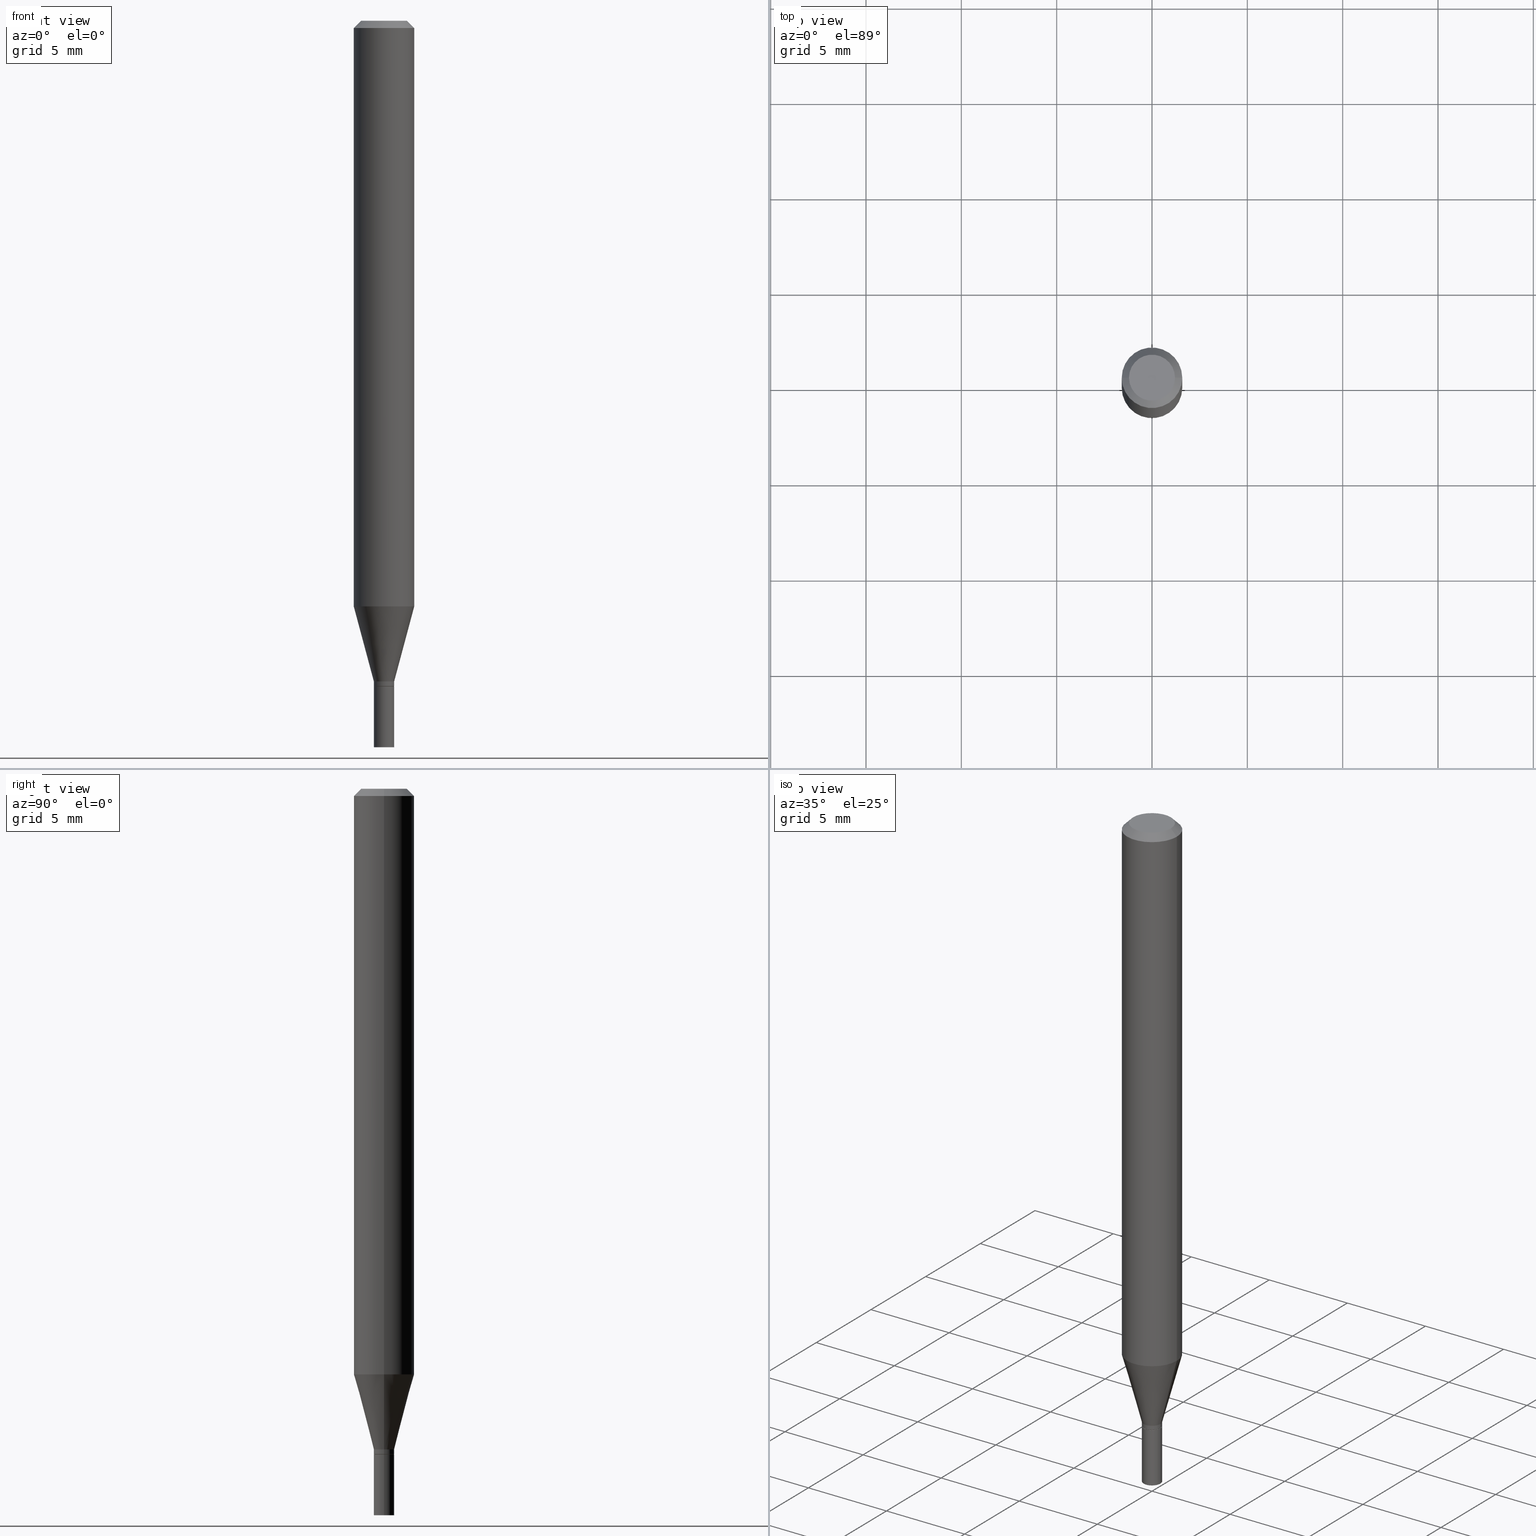
[diagram: canonical four-view strip — front | top / right | iso, engineering-drawing reading convention]
A machine part, canonical four-view strip (front | top / right | iso — engineering-drawing reading convention). The complete STEP part file that produces these views, byte-faithful:
ISO-10303-21;
HEADER;
FILE_DESCRIPTION (( 'STEP AP203' ),
    '1' );
FILE_NAME ('00551.STEP',
    '2024-03-19T21:39:30',
    ( '' ),
    ( '' ),
    'SwSTEP 2.0',
    'SolidWorks 2023',
    '' );
FILE_SCHEMA (( 'CONFIG_CONTROL_DESIGN' ));
ENDSEC;

DATA;
#1 = ORIENTED_EDGE ( 'NONE', *, *, #458, .T. ) ;
#2 = CARTESIAN_POINT ( 'NONE',  ( -0.02050000000000000086, -4.648984871565551237E-15, -1.374000000000000110 ) ) ;
#3 = ORIENTED_EDGE ( 'NONE', *, *, #261, .F. ) ;
#4 = APPROVAL_STATUS ( 'not_yet_approved' ) ;
#5 = VERTEX_POINT ( 'NONE', #285 ) ;
#6 = APPLICATION_PROTOCOL_DEFINITION ( 'international standard', 'config_control_design', 1994, #114 ) ;
#7 = DIRECTION ( 'NONE',  ( -2.445468806185136597E-29, 3.491481338843145583E-15, 1.000000000000000000 ) ) ;
#8 = CARTESIAN_POINT ( 'NONE',  ( 3.335619451636526233E-29, -4.762380546182051062E-15, -1.363999999999999879 ) ) ;
#9 = FACE_OUTER_BOUND ( 'NONE', #168, .T. ) ;
#10 = PERSON_AND_ORGANIZATION ( #194, #313 ) ;
#11 = DIRECTION ( 'NONE',  ( -2.445468806185136597E-29, 3.491481338843145583E-15, 1.000000000000000000 ) ) ;
#12 = AXIS2_PLACEMENT_3D ( 'NONE', #416, #294, #184 ) ;
#13 = APPROVAL ( #450, 'UNSPECIFIED' ) ;
#14 = CIRCLE ( 'NONE', #213, 0.02050000000000000086 ) ;
#15 = DIRECTION ( 'NONE',  ( 1.000000000000000000, -6.982962677686267499E-15, 4.884662768193073002E-29 ) ) ;
#16 = DATE_AND_TIME ( #231, #433 ) ;
#17 = DIRECTION ( 'NONE',  ( 1.000000000000000000, -6.982962677686265922E-15, 4.876176775795935232E-29 ) ) ;
#18 = APPLICATION_CONTEXT ( 'configuration controlled 3d designs of mechanical parts and assemblies' ) ;
#19 = DIRECTION ( 'NONE',  ( 1.000000000000000000, -6.982962677686266711E-15, 4.876176775795936353E-29 ) ) ;
#20 = VERTEX_POINT ( 'NONE', #353 ) ;
#21 = EDGE_CURVE ( 'NONE', #253, #149, #65, .T. ) ;
#22 = MANIFOLD_SOLID_BREP ( 'Body-Move/Copy2[2]', #196 ) ;
#23 = DIRECTION ( 'NONE',  ( -2.445468806185136877E-29, 3.491481338843145188E-15, 1.000000000000000000 ) ) ;
#24 = CIRCLE ( 'NONE', #282, 0.02050000000000000086 ) ;
#25 = VERTEX_POINT ( 'NONE', #398 ) ;
#26 = CARTESIAN_POINT ( 'NONE',  ( 0.02100000000000000477, -5.383864224496130787E-15, -1.500000000000000222 ) ) ;
#27 = ORIENTED_EDGE ( 'NONE', *, *, #112, .T. ) ;
#28 = PRODUCT_RELATED_PRODUCT_CATEGORY ( 'detail', '', ( #315 ) ) ;
#29 = CARTESIAN_POINT ( 'NONE',  ( 0.02050000000000000086, -4.940446094463050737E-15, -1.374000000000000110 ) ) ;
#30 = ORIENTED_EDGE ( 'NONE', *, *, #172, .T. ) ;
#31 = AXIS2_PLACEMENT_3D ( 'NONE', #38, #47, #328 ) ;
#32 = AXIS2_PLACEMENT_3D ( 'NONE', #152, #397, #441 ) ;
#33 = EDGE_LOOP ( 'NONE', ( #463, #319 ) ) ;
#34 = EDGE_LOOP ( 'NONE', ( #70, #30, #390, #237 ) ) ;
#35 = CC_DESIGN_PERSON_AND_ORGANIZATION_ASSIGNMENT ( #200, #339, ( #376 ) ) ;
#36 = DIRECTION ( 'NONE',  ( 0.7071067811865656694, -2.468850131082446387E-15, 0.7071067811865294761 ) ) ;
#37 = EDGE_LOOP ( 'NONE', ( #271, #137, #3, #80 ) ) ;
#38 = CARTESIAN_POINT ( 'NONE',  ( 3.668203209277705088E-31, -5.237222008264718399E-17, -0.01499999999999999944 ) ) ;
#39 = AXIS2_PLACEMENT_3D ( 'NONE', #381, #312, #171 ) ;
#40 = VECTOR ( 'NONE', #265, 39.37007874015747433 ) ;
#41 = ADVANCED_FACE ( 'NONE', ( #430 ), #107, .T. ) ;
#42 = VERTEX_POINT ( 'NONE', #359 ) ;
#43 = LINE ( 'NONE', #320, #135 ) ;
#44 = ADVANCED_FACE ( 'NONE', ( #465 ), #156, .T. ) ;
#45 = ORIENTED_EDGE ( 'NONE', *, *, #92, .T. ) ;
#46 = CYLINDRICAL_SURFACE ( 'NONE', #434, 0.02099999999999992498 ) ;
#47 = DIRECTION ( 'NONE',  ( 2.445468806185136597E-29, -3.491481338843145583E-15, -1.000000000000000000 ) ) ;
#48 = DIRECTION ( 'NONE',  ( -2.445468806185136597E-29, 3.491481338843145583E-15, 1.000000000000000000 ) ) ;
#49 = EDGE_CURVE ( 'NONE', #306, #105, #214, .T. ) ;
#50 = LENGTH_MEASURE_WITH_UNIT ( LENGTH_MEASURE( 0.02539999999999999897 ), #436 );
#51 = DIRECTION ( 'NONE',  ( -2.445468806185136597E-29, 3.491481338843145583E-15, 1.000000000000000000 ) ) ;
#52 = CC_DESIGN_DATE_AND_TIME_ASSIGNMENT ( #272, #411, ( #321 ) ) ;
#53 = FACE_OUTER_BOUND ( 'NONE', #176, .T. ) ;
#54 = CONICAL_SURFACE ( 'NONE', #459, 0.02050000000000000086, 0.7853981633974739252 ) ;
#55 = PERSON_AND_ORGANIZATION ( #194, #313 ) ;
#56 = DIRECTION ( 'NONE',  ( 1.000000000000000000, -6.982962677686284854E-15, 0.000000000000000000 ) ) ;
#57 = AXIS2_PLACEMENT_3D ( 'NONE', #117, #157, #226 ) ;
#58 = CALENDAR_DATE ( 2024, 19, 3 ) ;
#59 = DIRECTION ( 'NONE',  ( -0.7071067811865444641, 2.468850131082224717E-15, -0.7071067811865505703 ) ) ;
#60 = ADVANCED_FACE ( 'NONE', ( #332 ), #220, .T. ) ;
#61 = DATE_TIME_ROLE ( 'classification_date' ) ;
#62 = CONICAL_SURFACE ( 'NONE', #346, 0.02050000000000000086, 0.7853981633974739252 ) ;
#63 = FACE_OUTER_BOUND ( 'NONE', #110, .T. ) ;
#64 = CARTESIAN_POINT ( 'NONE',  ( 3.335619451636526233E-29, -4.762380546182051062E-15, -1.363999999999999879 ) ) ;
#65 = CIRCLE ( 'NONE', #150, 0.04749999999999999362 ) ;
#66 = CARTESIAN_POINT ( 'NONE',  ( 3.360074139698378339E-29, -4.797295359570482711E-15, -1.374000000000000110 ) ) ;
#67 = ORIENTED_EDGE ( 'NONE', *, *, #92, .F. ) ;
#68 = AXIS2_PLACEMENT_3D ( 'NONE', #276, #453, #387 ) ;
#69 = EDGE_CURVE ( 'NONE', #314, #306, #120, .T. ) ;
#70 = ORIENTED_EDGE ( 'NONE', *, *, #405, .F. ) ;
#71 = CARTESIAN_POINT ( 'NONE',  ( 3.335619451636526233E-29, -4.762380546182051062E-15, -1.363999999999999879 ) ) ;
#72 = DIRECTION ( 'NONE',  ( -2.445468806185136597E-29, 3.491481338843145583E-15, 1.000000000000000000 ) ) ;
#73 = CIRCLE ( 'NONE', #274, 0.06250000000000000000 ) ;
#74 = ORIENTED_EDGE ( 'NONE', *, *, #172, .F. ) ;
#75 = CARTESIAN_POINT ( 'NONE',  ( 0.02099999999999992151, -4.909022762413462095E-15, -1.363999999999999879 ) ) ;
#76 = ORIENTED_EDGE ( 'NONE', *, *, #373, .T. ) ;
#77 = ADVANCED_FACE ( 'NONE', ( #295 ), #82, .F. ) ;
#78 = CARTESIAN_POINT ( 'NONE',  ( 0.06250000000000000000, -4.811533449433679005E-16, -0.01499999999999999944 ) ) ;
#79 = ADVANCED_FACE ( 'NONE', ( #53 ), #327, .T. ) ;
#80 = ORIENTED_EDGE ( 'NONE', *, *, #193, .F. ) ;
#81 = CARTESIAN_POINT ( 'NONE',  ( 3.360074139698378339E-29, -4.797295359570482711E-15, -1.374000000000000110 ) ) ;
#82 = PLANE ( 'NONE',  #400 ) ;
#83 = VECTOR ( 'NONE', #59, 39.37007874015748143 ) ;
#84 = DIRECTION ( 'NONE',  ( -0.7071067811865656694, 7.493145998870420424E-15, 0.7071067811865294761 ) ) ;
#85 = AXIS2_PLACEMENT_3D ( 'NONE', #404, #259, #147 ) ;
#86 = LINE ( 'NONE', #369, #266 ) ;
#87 = EDGE_CURVE ( 'NONE', #356, #462, #116, .T. ) ;
#88 =( NAMED_UNIT ( * ) SI_UNIT ( $, .STERADIAN. ) SOLID_ANGLE_UNIT ( ) );
#89 = CIRCLE ( 'NONE', #426, 0.02100000000000000477 ) ;
#90 = FACE_OUTER_BOUND ( 'NONE', #34, .T. ) ;
#91 = CARTESIAN_POINT ( 'NONE',  ( 0.000000000000000000, 0.000000000000000000, 0.000000000000000000 ) ) ;
#92 = EDGE_CURVE ( 'NONE', #115, #314, #254, .T. ) ;
#93 = DIRECTION ( 'NONE',  ( 1.000000000000000000, -6.982962677686266711E-15, 4.876176775795935793E-29 ) ) ;
#94 =( GEOMETRIC_REPRESENTATION_CONTEXT ( 3 ) GLOBAL_UNCERTAINTY_ASSIGNED_CONTEXT ( ( #158 ) ) GLOBAL_UNIT_ASSIGNED_CONTEXT ( ( #466, #186, #88 ) ) REPRESENTATION_CONTEXT ( 'NONE', 'WORKASPACE' ) );
#95 = CARTESIAN_POINT ( 'NONE',  ( 0.02099999999999992498, -1.466422162314110822E-16, 1.023997122917142971E-30 ) ) ;
#96 = CALENDAR_DATE ( 2024, 19, 3 ) ;
#97 = CARTESIAN_POINT ( 'NONE',  ( 0.06250000000000000000, -4.364351673553916694E-16, 3.047610484872459871E-30 ) ) ;
#98 = EDGE_LOOP ( 'NONE', ( #421, #354 ) ) ;
#99 = CARTESIAN_POINT ( 'NONE',  ( 0.02100000000000000477, -4.943937575801894533E-15, -1.374000000000000110 ) ) ;
#100 = EDGE_LOOP ( 'NONE', ( #202, #218, #27, #308 ) ) ;
#101 = EDGE_CURVE ( 'NONE', #462, #356, #174, .T. ) ;
#102 = DIRECTION ( 'NONE',  ( -2.445468806185136877E-29, 3.491481338843145188E-15, 1.000000000000000000 ) ) ;
#103 = ORIENTED_EDGE ( 'NONE', *, *, #225, .F. ) ;
#104 = AXIS2_PLACEMENT_3D ( 'NONE', #191, #11, #17 ) ;
#105 = VERTEX_POINT ( 'NONE', #195 ) ;
#106 = ORIENTED_EDGE ( 'NONE', *, *, #361, .T. ) ;
#107 = CYLINDRICAL_SURFACE ( 'NONE', #122, 0.02100000000000000477 ) ;
#108 = CIRCLE ( 'NONE', #368, 0.02099999999999992151 ) ;
#109 = DIRECTION ( 'NONE',  ( -2.445468806185136597E-29, 3.491481338843145583E-15, 1.000000000000000000 ) ) ;
#110 = EDGE_LOOP ( 'NONE', ( #417, #74 ) ) ;
#111 = ORIENTED_EDGE ( 'NONE', *, *, #366, .T. ) ;
#112 = EDGE_CURVE ( 'NONE', #42, #5, #138, .T. ) ;
#113 = APPROVAL_PERSON_ORGANIZATION ( #217, #242, #438 ) ;
#114 = APPLICATION_CONTEXT ( 'configuration controlled 3d designs of mechanical parts and assemblies' ) ;
#115 = VERTEX_POINT ( 'NONE', #301 ) ;
#116 = CIRCLE ( 'NONE', #379, 0.02100000000000000477 ) ;
#117 = CARTESIAN_POINT ( 'NONE',  ( 3.358851405295285537E-29, -4.795549618901061208E-15, -1.373500000000000165 ) ) ;
#118 = PLANE ( 'NONE',  #275 ) ;
#119 = DIRECTION ( 'NONE',  ( 0.7071067811865444641, -7.319954787623245001E-15, -0.7071067811865505703 ) ) ;
#120 = LINE ( 'NONE', #155, #283 ) ;
#121 = APPROVAL_ROLE ( '' ) ;
#122 = AXIS2_PLACEMENT_3D ( 'NONE', #317, #394, #251 ) ;
#123 = DIRECTION ( 'NONE',  ( -2.445468806185136597E-29, 3.491481338843145583E-15, 1.000000000000000000 ) ) ;
#124 = DIRECTION ( 'NONE',  ( -2.445468806185136877E-29, 3.491481338843145188E-15, 1.000000000000000000 ) ) ;
#125 = APPROVAL_ROLE ( '' ) ;
#126 = DIRECTION ( 'NONE',  ( 1.000000000000000000, -6.982962677686265922E-15, 4.876176775795935793E-29 ) ) ;
#127 = APPROVAL_DATE_TIME ( #448, #242 ) ;
#128 = LINE ( 'NONE', #95, #238 ) ;
#129 = ORIENTED_EDGE ( 'NONE', *, *, #232, .F. ) ;
#130 = PERSON_AND_ORGANIZATION ( #194, #313 ) ;
#131 = DIRECTION ( 'NONE',  ( 1.000000000000000000, -6.982962677686266711E-15, 4.876176775795935793E-29 ) ) ;
#132 = ORIENTED_EDGE ( 'NONE', *, *, #309, .F. ) ;
#133 = LINE ( 'NONE', #457, #83 ) ;
#134 = ADVANCED_FACE ( 'NONE', ( #293 ), #118, .F. ) ;
#135 = VECTOR ( 'NONE', #84, 39.37007874015748143 ) ;
#136 = CARTESIAN_POINT ( 'NONE',  ( 0.02050000000000000086, -4.940446094463050737E-15, -1.374000000000000110 ) ) ;
#137 = ORIENTED_EDGE ( 'NONE', *, *, #49, .T. ) ;
#138 = CIRCLE ( 'NONE', #197, 0.06250000000000000000 ) ;
#139 = ORIENTED_EDGE ( 'NONE', *, *, #309, .T. ) ;
#140 = DIRECTION ( 'NONE',  ( 1.000000000000000000, -6.982962677686266711E-15, 0.000000000000000000 ) ) ;
#141 = AXIS2_PLACEMENT_3D ( 'NONE', #305, #72, #131 ) ;
#142 = ADVANCED_FACE ( 'NONE', ( #90 ), #54, .T. ) ;
#143 = ORIENTED_EDGE ( 'NONE', *, *, #261, .T. ) ;
#144 = FACE_OUTER_BOUND ( 'NONE', #100, .T. ) ;
#145 = ADVANCED_FACE ( 'NONE', ( #9 ), #46, .T. ) ;
#146 = EDGE_LOOP ( 'NONE', ( #246, #429, #67, #454 ) ) ;
#147 = DIRECTION ( 'NONE',  ( -1.000000000000000000, 6.982962677686266711E-15, 0.000000000000000000 ) ) ;
#148 = LOCAL_TIME ( 17, 39, 30.00000000000000000, #402 ) ;
#149 = VERTEX_POINT ( 'NONE', #258 ) ;
#150 = AXIS2_PLACEMENT_3D ( 'NONE', #281, #216, #425 ) ;
#151 = DIRECTION ( 'NONE',  ( -2.445468806185136597E-29, 3.491481338843145583E-15, 1.000000000000000000 ) ) ;
#152 = CARTESIAN_POINT ( 'NONE',  ( 3.335619451636526233E-29, -4.762380546182051062E-15, -1.363999999999999879 ) ) ;
#153 = EDGE_CURVE ( 'NONE', #149, #253, #358, .T. ) ;
#154 = CARTESIAN_POINT ( 'NONE',  ( -3.223020679335594837E-45, 4.601619341103081537E-31, 1.317956160873471783E-16 ) ) ;
#155 = CARTESIAN_POINT ( 'NONE',  ( -0.02099999999999992498, 1.492139745096205060E-16, -1.032976368953526656E-30 ) ) ;
#156 = CONICAL_SURFACE ( 'NONE', #239, 0.02099999999999992151, 0.2617993877991500740 ) ;
#157 = DIRECTION ( 'NONE',  ( -2.445468806185136597E-29, 3.491481338843145583E-15, 1.000000000000000000 ) ) ;
#158 = UNCERTAINTY_MEASURE_WITH_UNIT (LENGTH_MEASURE( 1.000000000000000082E-05 ), #466, 'distance_accuracy_value', 'NONE');
#159 = DIRECTION ( 'NONE',  ( 2.438088387897960049E-29, -3.491481338843145188E-15, -1.000000000000000000 ) ) ;
#160 = PLANE ( 'NONE',  #12 ) ;
#161 = LOCAL_TIME ( 17, 39, 30.00000000000000000, #334 ) ;
#162 = ORIENTED_EDGE ( 'NONE', *, *, #458, .F. ) ;
#163 = PERSON_AND_ORGANIZATION ( #194, #313 ) ;
#164 = DESIGN_CONTEXT ( 'detailed design', #18, 'design' ) ;
#165 = AXIS2_PLACEMENT_3D ( 'NONE', #270, #204, #240 ) ;
#166 = CIRCLE ( 'NONE', #39, 0.06250000000000000000 ) ;
#167 = CARTESIAN_POINT ( 'NONE',  ( 0.04749999999999999362, -4.035134999187576158E-16, 1.317956160873497667E-16 ) ) ;
#168 = EDGE_LOOP ( 'NONE', ( #284, #76, #287, #350 ) ) ;
#169 = CARTESIAN_POINT ( 'NONE',  ( -0.02099999999999992151, -4.195348449684704235E-15, -1.363999999999999879 ) ) ;
#170 = ORIENTED_EDGE ( 'NONE', *, *, #288, .F. ) ;
#171 = DIRECTION ( 'NONE',  ( 1.000000000000000000, -6.982962677686270655E-15, 0.000000000000000000 ) ) ;
#172 = EDGE_CURVE ( 'NONE', #388, #316, #14, .T. ) ;
#173 = CC_DESIGN_APPROVAL ( #242, ( #321 ) ) ;
#174 = CIRCLE ( 'NONE', #461, 0.02100000000000000477 ) ;
#175 = ORIENTED_EDGE ( 'NONE', *, *, #225, .T. ) ;
#176 = EDGE_LOOP ( 'NONE', ( #432, #106, #245, #210 ) ) ;
#177 = CARTESIAN_POINT ( 'NONE',  ( 0.02100000000000000477, -1.466422162314116246E-16, 1.023997122917146650E-30 ) ) ;
#178 = EDGE_CURVE ( 'NONE', #105, #5, #86, .T. ) ;
#179 = VECTOR ( 'NONE', #413, 39.37007874015748143 ) ;
#180 = ORIENTED_EDGE ( 'NONE', *, *, #361, .F. ) ;
#181 = AXIS2_PLACEMENT_3D ( 'NONE', #230, #109, #19 ) ;
#182 = DIRECTION ( 'NONE',  ( 1.000000000000000000, 0.000000000000000000, 0.000000000000000000 ) ) ;
#183 = ORIENTED_EDGE ( 'NONE', *, *, #49, .F. ) ;
#184 = DIRECTION ( 'NONE',  ( -1.000000000000000000, 6.982962677686265922E-15, -4.876176775795935793E-29 ) ) ;
#185 = ORIENTED_EDGE ( 'NONE', *, *, #153, .F. ) ;
#186 =( NAMED_UNIT ( * ) PLANE_ANGLE_UNIT ( ) SI_UNIT ( $, .RADIAN. ) );
#187 = APPROVAL_PERSON_ORGANIZATION ( #55, #13, #121 ) ;
#188 = CARTESIAN_POINT ( 'NONE',  ( 3.668203209277704895E-29, -5.237222008264718177E-15, -1.500000000000000222 ) ) ;
#189 = FACE_OUTER_BOUND ( 'NONE', #37, .T. ) ;
#190 = LINE ( 'NONE', #330, #363 ) ;
#191 = CARTESIAN_POINT ( 'NONE',  ( 0.000000000000000000, 0.000000000000000000, 0.000000000000000000 ) ) ;
#192 = PERSON_AND_ORGANIZATION_ROLE ( 'creator' ) ;
#193 = EDGE_CURVE ( 'NONE', #423, #25, #190, .T. ) ;
#194 = PERSON ( 'UNSPECIFIED', 'UNSPECIFIED', 'UNSPECIFIED', ('UNSPECIFIED'), ('UNSPECIFIED'), ('UNSPECIFIED') ) ;
#195 = CARTESIAN_POINT ( 'NONE',  ( -0.06250000000000000000, -3.777530327696978579E-15, -1.209119891485891607 ) ) ;
#196 = CLOSED_SHELL ( 'NONE', ( #348, #208, #452, #311, #415, #44, #79, #428, #377, #336, #142, #145 ) ) ;
#197 = AXIS2_PLACEMENT_3D ( 'NONE', #340, #51, #337 ) ;
#198 = DIRECTION ( 'NONE',  ( -2.445468806185136597E-29, 3.491481338843145583E-15, 1.000000000000000000 ) ) ;
#199 = DIRECTION ( 'NONE',  ( 1.000000000000000000, -6.982962677686261977E-15, 0.000000000000000000 ) ) ;
#200 = PERSON_AND_ORGANIZATION ( #194, #313 ) ;
#201 = DIRECTION ( 'NONE',  ( -2.445468806185136597E-29, 3.491481338843145583E-15, 1.000000000000000000 ) ) ;
#202 = ORIENTED_EDGE ( 'NONE', *, *, #21, .F. ) ;
#203 = EDGE_CURVE ( 'NONE', #5, #42, #73, .T. ) ;
#204 = DIRECTION ( 'NONE',  ( -2.445468806185136597E-29, 3.491481338843145583E-15, 1.000000000000000000 ) ) ;
#205 = EDGE_LOOP ( 'NONE', ( #1, #139 ) ) ;
#206 = DIRECTION ( 'NONE',  ( 1.000000000000000000, -6.982962677686261977E-15, 0.000000000000000000 ) ) ;
#207 = EDGE_LOOP ( 'NONE', ( #241, #185, #111, #419 ) ) ;
#208 = ADVANCED_FACE ( 'NONE', ( #449 ), #62, .T. ) ;
#209 = CC_DESIGN_SECURITY_CLASSIFICATION ( #376, ( #456 ) ) ;
#210 = ORIENTED_EDGE ( 'NONE', *, *, #203, .F. ) ;
#211 = DIRECTION ( 'NONE',  ( -2.445468806185136597E-29, 3.491481338843145583E-15, 1.000000000000000000 ) ) ;
#212 = LINE ( 'NONE', #97, #179 ) ;
#213 = AXIS2_PLACEMENT_3D ( 'NONE', #446, #222, #297 ) ;
#214 = LINE ( 'NONE', #412, #40 ) ;
#215 = AXIS2_PLACEMENT_3D ( 'NONE', #357, #292, #182 ) ;
#216 = DIRECTION ( 'NONE',  ( -2.445468806185136597E-29, 3.491481338843145583E-15, 1.000000000000000000 ) ) ;
#217 = PERSON_AND_ORGANIZATION ( #194, #313 ) ;
#218 = ORIENTED_EDGE ( 'NONE', *, *, #389, .T. ) ;
#219 = EDGE_CURVE ( 'NONE', #316, #115, #420, .T. ) ;
#220 = CYLINDRICAL_SURFACE ( 'NONE', #104, 0.02100000000000000477 ) ;
#221 = CC_DESIGN_APPROVAL ( #331, ( #456 ) ) ;
#222 = DIRECTION ( 'NONE',  ( -2.445468806185136597E-29, 3.491481338843145583E-15, 1.000000000000000000 ) ) ;
#223 = DIRECTION ( 'NONE',  ( 1.000000000000000000, -6.982962677686284854E-15, 0.000000000000000000 ) ) ;
#224 = CARTESIAN_POINT ( 'NONE',  ( 1.466422162314452005E-16, 0.02099999999999520653, -1.374000000000000110 ) ) ;
#225 = EDGE_CURVE ( 'NONE', #462, #20, #247, .T. ) ;
#226 = DIRECTION ( 'NONE',  ( 1.000000000000000000, -6.982962677686265922E-15, 0.000000000000000000 ) ) ;
#227 = EDGE_CURVE ( 'NONE', #25, #42, #212, .T. ) ;
#228 = APPROVAL_DATE_TIME ( #445, #331 ) ;
#229 = CARTESIAN_POINT ( 'NONE',  ( 3.668203209277704895E-29, -5.237222008264718177E-15, -1.500000000000000222 ) ) ;
#230 = CARTESIAN_POINT ( 'NONE',  ( 0.000000000000000000, 0.000000000000000000, 0.000000000000000000 ) ) ;
#231 = CALENDAR_DATE ( 2024, 19, 3 ) ;
#232 = EDGE_CURVE ( 'NONE', #115, #423, #128, .T. ) ;
#233 = CARTESIAN_POINT ( 'NONE',  ( 3.360074139698378339E-29, -4.797295359570482711E-15, -1.374000000000000110 ) ) ;
#234 = EDGE_LOOP ( 'NONE', ( #396, #175, #162, #170 ) ) ;
#235 = PERSON_AND_ORGANIZATION_ROLE ( 'design_supplier' ) ;
#236 = FACE_OUTER_BOUND ( 'NONE', #98, .T. ) ;
#237 = ORIENTED_EDGE ( 'NONE', *, *, #373, .F. ) ;
#238 = VECTOR ( 'NONE', #102, 39.37007874015748143 ) ;
#239 = AXIS2_PLACEMENT_3D ( 'NONE', #71, #211, #140 ) ;
#240 = DIRECTION ( 'NONE',  ( 1.000000000000000000, -6.982962677686270655E-15, 0.000000000000000000 ) ) ;
#241 = ORIENTED_EDGE ( 'NONE', *, *, #389, .F. ) ;
#242 = APPROVAL ( #4, 'UNSPECIFIED' ) ;
#243 = PRODUCT_DEFINITION_SHAPE ( 'NONE', 'NONE',  #321 ) ;
#244 = EDGE_LOOP ( 'NONE', ( #183, #343, #352, #180 ) ) ;
#245 = ORIENTED_EDGE ( 'NONE', *, *, #227, .T. ) ;
#246 = ORIENTED_EDGE ( 'NONE', *, *, #280, .T. ) ;
#247 = LINE ( 'NONE', #455, #407 ) ;
#248 = EDGE_LOOP ( 'NONE', ( #103, #422, #322, #132 ) ) ;
#249 = APPLICATION_PROTOCOL_DEFINITION ( 'international standard', 'config_control_design', 1994, #18 ) ;
#250 = VECTOR ( 'NONE', #36, 39.37007874015748143 ) ;
#251 = DIRECTION ( 'NONE',  ( 1.000000000000000000, -6.982962677686265922E-15, 4.876176775795935232E-29 ) ) ;
#252 = DIRECTION ( 'NONE',  ( 1.000000000000000000, -6.982962677686266711E-15, 0.000000000000000000 ) ) ;
#253 = VERTEX_POINT ( 'NONE', #167 ) ;
#254 = CIRCLE ( 'NONE', #57, 0.02099999999999992498 ) ;
#255 = PERSON_AND_ORGANIZATION_ROLE ( 'design_owner' ) ;
#256 = DIRECTION ( 'NONE',  ( -2.438088387897960049E-29, 3.491481338843145188E-15, 1.000000000000000000 ) ) ;
#257 = FACE_OUTER_BOUND ( 'NONE', #207, .T. ) ;
#258 = CARTESIAN_POINT ( 'NONE',  ( -0.04749999999999999362, 3.578768372314212971E-16, 1.317956160873447624E-16 ) ) ;
#259 = DIRECTION ( 'NONE',  ( 2.445468806185136597E-29, -3.491481338843145583E-15, -1.000000000000000000 ) ) ;
#260 = DIRECTION ( 'NONE',  ( -2.445468806185136877E-29, 3.491481338843145188E-15, 1.000000000000000000 ) ) ;
#261 = EDGE_CURVE ( 'NONE', #25, #105, #298, .T. ) ;
#262 = COORDINATED_UNIVERSAL_TIME_OFFSET ( 5, 0, .BEHIND. ) ;
#263 = DIRECTION ( 'NONE',  ( 1.000000000000000000, -6.982962677686261977E-15, 0.000000000000000000 ) ) ;
#264 = SHAPE_DEFINITION_REPRESENTATION ( #243, #451 ) ;
#265 = DIRECTION ( 'NONE',  ( -0.2588190451025213501, 5.211531920934551042E-15, 0.9659258262890682012 ) ) ;
#266 = VECTOR ( 'NONE', #124, 39.37007874015748143 ) ;
#267 = LOCAL_TIME ( 17, 39, 30.00000000000000000, #375 ) ;
#268 = CYLINDRICAL_SURFACE ( 'NONE', #181, 0.02099999999999992498 ) ;
#269 = PERSON_AND_ORGANIZATION ( #194, #313 ) ;
#270 = CARTESIAN_POINT ( 'NONE',  ( 2.956864977566705326E-29, -4.221619537547040407E-15, -1.209119891485891607 ) ) ;
#271 = ORIENTED_EDGE ( 'NONE', *, *, #435, .T. ) ;
#272 = DATE_AND_TIME ( #380, #161 ) ;
#273 = CARTESIAN_POINT ( 'NONE',  ( 3.360074139698378339E-29, -4.797295359570482711E-15, -1.374000000000000110 ) ) ;
#274 = AXIS2_PLACEMENT_3D ( 'NONE', #442, #123, #410 ) ;
#275 = AXIS2_PLACEMENT_3D ( 'NONE', #299, #256, #403 ) ;
#276 = CARTESIAN_POINT ( 'NONE',  ( 3.358851405295285537E-29, -4.795549618901061208E-15, -1.373500000000000165 ) ) ;
#277 = VECTOR ( 'NONE', #119, 39.37007874015748143 ) ;
#278 = CC_DESIGN_PERSON_AND_ORGANIZATION_ASSIGNMENT ( #399, #255, ( #315 ) ) ;
#279 = CARTESIAN_POINT ( 'NONE',  ( 3.360074139698378339E-29, -4.797295359570482711E-15, -1.374000000000000110 ) ) ;
#280 = EDGE_CURVE ( 'NONE', #316, #388, #24, .T. ) ;
#281 = CARTESIAN_POINT ( 'NONE',  ( -3.223020679335594837E-45, 4.601619341103081537E-31, 1.317956160873471783E-16 ) ) ;
#282 = AXIS2_PLACEMENT_3D ( 'NONE', #233, #201, #206 ) ;
#283 = VECTOR ( 'NONE', #260, 39.37007874015748143 ) ;
#284 = ORIENTED_EDGE ( 'NONE', *, *, #69, .F. ) ;
#285 = CARTESIAN_POINT ( 'NONE',  ( -0.06250000000000000000, -1.692906668964781127E-15, -0.01499999999999999944 ) ) ;
#286 = CARTESIAN_POINT ( 'NONE',  ( -0.02100000000000000477, -4.868044709407979667E-15, -1.500000000000000222 ) ) ;
#287 = ORIENTED_EDGE ( 'NONE', *, *, #232, .T. ) ;
#288 = EDGE_CURVE ( 'NONE', #356, #362, #351, .T. ) ;
#289 = CONICAL_SURFACE ( 'NONE', #392, 0.02099999999999992151, 0.2617993877991500740 ) ;
#290 = AXIS2_PLACEMENT_3D ( 'NONE', #154, #406, #15 ) ;
#291 = EDGE_LOOP ( 'NONE', ( #45, #393, #384, #129 ) ) ;
#292 = DIRECTION ( 'NONE',  ( 0.000000000000000000, 0.000000000000000000, 1.000000000000000000 ) ) ;
#293 = FACE_OUTER_BOUND ( 'NONE', #33, .T. ) ;
#294 = DIRECTION ( 'NONE',  ( 2.438088387897960049E-29, -3.491481338843145188E-15, -1.000000000000000000 ) ) ;
#295 = FACE_OUTER_BOUND ( 'NONE', #205, .T. ) ;
#296 = EDGE_CURVE ( 'NONE', #306, #423, #108, .T. ) ;
#297 = DIRECTION ( 'NONE',  ( 1.000000000000000000, -6.982962677686261977E-15, 0.000000000000000000 ) ) ;
#298 = CIRCLE ( 'NONE', #165, 0.06250000000000000000 ) ;
#299 = CARTESIAN_POINT ( 'NONE',  ( 3.576687321579069994E-29, -5.368277968210015545E-15, -1.500000000000000222 ) ) ;
#300 = APPROVAL_DATE_TIME ( #16, #13 ) ;
#301 = CARTESIAN_POINT ( 'NONE',  ( 0.02099999999999992498, -4.942191835132472241E-15, -1.373500000000000165 ) ) ;
#302 = CC_DESIGN_DATE_AND_TIME_ASSIGNMENT ( #344, #61, ( #376 ) ) ;
#303 = CIRCLE ( 'NONE', #335, 0.02100000000000000477 ) ;
#304 = DIMENSIONAL_EXPONENTS ( 1.000000000000000000, 0.000000000000000000, 0.000000000000000000, 0.000000000000000000, 0.000000000000000000, 0.000000000000000000, 0.000000000000000000 ) ;
#305 = CARTESIAN_POINT ( 'NONE',  ( 0.000000000000000000, 0.000000000000000000, 0.000000000000000000 ) ) ;
#306 = VERTEX_POINT ( 'NONE', #169 ) ;
#307 = DIRECTION ( 'NONE',  ( -2.438088387897960049E-29, 3.491481338843145188E-15, 1.000000000000000000 ) ) ;
#308 = ORIENTED_EDGE ( 'NONE', *, *, #366, .F. ) ;
#309 = EDGE_CURVE ( 'NONE', #20, #362, #89, .T. ) ;
#310 = FACE_OUTER_BOUND ( 'NONE', #437, .T. ) ;
#311 = ADVANCED_FACE ( 'NONE', ( #310 ), #447, .T. ) ;
#312 = DIRECTION ( 'NONE',  ( -2.445468806185136597E-29, 3.491481338843145583E-15, 1.000000000000000000 ) ) ;
#313 = ORGANIZATION ( 'UNSPECIFIED', 'UNSPECIFIED', '' ) ;
#314 = VERTEX_POINT ( 'NONE', #395 ) ;
#315 = PRODUCT ( '00551', '00551', '', ( #323 ) ) ;
#316 = VERTEX_POINT ( 'NONE', #29 ) ;
#317 = CARTESIAN_POINT ( 'NONE',  ( 0.000000000000000000, 0.000000000000000000, 0.000000000000000000 ) ) ;
#318 = LOCAL_TIME ( 17, 39, 30.00000000000000000, #262 ) ;
#319 = ORIENTED_EDGE ( 'NONE', *, *, #101, .F. ) ;
#320 = CARTESIAN_POINT ( 'NONE',  ( -0.02050000000000000086, -4.651634098739662438E-15, -1.374000000000000110 ) ) ;
#321 = PRODUCT_DEFINITION ( 'UNKNOWN', '', #456, #164 ) ;
#322 = ORIENTED_EDGE ( 'NONE', *, *, #288, .T. ) ;
#323 = MECHANICAL_CONTEXT ( 'NONE', #114, 'mechanical' ) ;
#324 = ORIENTED_EDGE ( 'NONE', *, *, #112, .F. ) ;
#325 = APPROVAL_PERSON_ORGANIZATION ( #10, #331, #125 ) ;
#326 = DIRECTION ( 'NONE',  ( -2.445468806185136597E-29, 3.491481338843145583E-15, 1.000000000000000000 ) ) ;
#327 = CYLINDRICAL_SURFACE ( 'NONE', #338, 0.06250000000000000000 ) ;
#328 = DIRECTION ( 'NONE',  ( -1.000000000000000000, 6.982962677686266711E-15, 0.000000000000000000 ) ) ;
#329 = CIRCLE ( 'NONE', #68, 0.02099999999999992498 ) ;
#330 = CARTESIAN_POINT ( 'NONE',  ( 0.02099999999999992151, -4.909022762413462095E-15, -1.363999999999999879 ) ) ;
#331 = APPROVAL ( #385, 'UNSPECIFIED' ) ;
#332 = FACE_OUTER_BOUND ( 'NONE', #248, .T. ) ;
#333 = MANIFOLD_SOLID_BREP ( 'Body-Move/Copy2[1]', #460 ) ;
#334 = COORDINATED_UNIVERSAL_TIME_OFFSET ( 5, 0, .BEHIND. ) ;
#335 = AXIS2_PLACEMENT_3D ( 'NONE', #81, #326, #223 ) ;
#336 = ADVANCED_FACE ( 'NONE', ( #63 ), #342, .F. ) ;
#337 = DIRECTION ( 'NONE',  ( 1.000000000000000000, -6.982962677686266711E-15, 0.000000000000000000 ) ) ;
#338 = AXIS2_PLACEMENT_3D ( 'NONE', #91, #7, #93 ) ;
#339 = PERSON_AND_ORGANIZATION_ROLE ( 'classification_officer' ) ;
#340 = CARTESIAN_POINT ( 'NONE',  ( 3.668203209277705088E-31, -5.237222008264718399E-17, -0.01499999999999999944 ) ) ;
#341 = PERSON_AND_ORGANIZATION_ROLE ( 'creator' ) ;
#342 = PLANE ( 'NONE',  #347 ) ;
#343 = ORIENTED_EDGE ( 'NONE', *, *, #296, .T. ) ;
#344 = DATE_AND_TIME ( #96, #267 ) ;
#345 = DIRECTION ( 'NONE',  ( -2.445468806185136597E-29, 3.491481338843145583E-15, 1.000000000000000000 ) ) ;
#346 = AXIS2_PLACEMENT_3D ( 'NONE', #66, #383, #199 ) ;
#347 = AXIS2_PLACEMENT_3D ( 'NONE', #279, #307, #126 ) ;
#348 = ADVANCED_FACE ( 'NONE', ( #355 ), #268, .T. ) ;
#349 = DIRECTION ( 'NONE',  ( 1.000000000000000000, -6.982962677686266711E-15, 0.000000000000000000 ) ) ;
#350 = ORIENTED_EDGE ( 'NONE', *, *, #296, .F. ) ;
#351 = LINE ( 'NONE', #177, #408 ) ;
#352 = ORIENTED_EDGE ( 'NONE', *, *, #193, .T. ) ;
#353 = CARTESIAN_POINT ( 'NONE',  ( -0.02100000000000000477, -4.868044709407979667E-15, -1.374000000000000110 ) ) ;
#354 = ORIENTED_EDGE ( 'NONE', *, *, #21, .T. ) ;
#355 = FACE_OUTER_BOUND ( 'NONE', #291, .T. ) ;
#356 = VERTEX_POINT ( 'NONE', #26 ) ;
#357 = CARTESIAN_POINT ( 'NONE',  ( 0.000000000000000000, 0.000000000000000000, 0.000000000000000000 ) ) ;
#358 = CIRCLE ( 'NONE', #290, 0.04749999999999999362 ) ;
#359 = CARTESIAN_POINT ( 'NONE',  ( 0.06250000000000000000, -4.888073874380388472E-16, -0.01499999999999999944 ) ) ;
#360 = LINE ( 'NONE', #78, #277 ) ;
#361 = EDGE_CURVE ( 'NONE', #105, #25, #166, .T. ) ;
#362 = VERTEX_POINT ( 'NONE', #99 ) ;
#363 = VECTOR ( 'NONE', #444, 39.37007874015747433 ) ;
#364 = CALENDAR_DATE ( 2024, 19, 3 ) ;
#365 = CARTESIAN_POINT ( 'NONE',  ( 3.360074139698378339E-29, -4.797295359570482711E-15, -1.374000000000000110 ) ) ;
#366 = EDGE_CURVE ( 'NONE', #149, #5, #133, .T. ) ;
#367 = CIRCLE ( 'NONE', #32, 0.02099999999999992151 ) ;
#368 = AXIS2_PLACEMENT_3D ( 'NONE', #64, #345, #349 ) ;
#369 = CARTESIAN_POINT ( 'NONE',  ( -0.06250000000000000000, 4.440892098500626162E-16, -3.074334431409316114E-30 ) ) ;
#370 = DIRECTION ( 'NONE',  ( -2.445468806185136597E-29, 3.491481338843145583E-15, 1.000000000000000000 ) ) ;
#371 = CARTESIAN_POINT ( 'NONE',  ( 0.000000000000000000, 0.000000000000000000, 0.000000000000000000 ) ) ;
#372 = COORDINATED_UNIVERSAL_TIME_OFFSET ( 5, 0, .BEHIND. ) ;
#373 = EDGE_CURVE ( 'NONE', #314, #115, #329, .T. ) ;
#374 = DIRECTION ( 'NONE',  ( 1.000000000000000000, -6.982962677686266711E-15, 4.876176775795936353E-29 ) ) ;
#375 = COORDINATED_UNIVERSAL_TIME_OFFSET ( 5, 0, .BEHIND. ) ;
#376 = SECURITY_CLASSIFICATION ( '', '', #414 ) ;
#377 = ADVANCED_FACE ( 'NONE', ( #236 ), #160, .F. ) ;
#378 = DIRECTION ( 'NONE',  ( -1.000000000000000000, 6.982962677686265922E-15, -4.876176775795935793E-29 ) ) ;
#379 = AXIS2_PLACEMENT_3D ( 'NONE', #229, #151, #56 ) ;
#380 = CALENDAR_DATE ( 2024, 19, 3 ) ;
#381 = CARTESIAN_POINT ( 'NONE',  ( 2.956864977566705326E-29, -4.221619537547040407E-15, -1.209119891485891607 ) ) ;
#382 = ORIENTED_EDGE ( 'NONE', *, *, #227, .F. ) ;
#383 = DIRECTION ( 'NONE',  ( -2.445468806185136597E-29, 3.491481338843145583E-15, 1.000000000000000000 ) ) ;
#384 = ORIENTED_EDGE ( 'NONE', *, *, #435, .F. ) ;
#385 = APPROVAL_STATUS ( 'not_yet_approved' ) ;
#386 = DIRECTION ( 'NONE',  ( -2.445468806185136877E-29, 3.491481338843145188E-15, 1.000000000000000000 ) ) ;
#387 = DIRECTION ( 'NONE',  ( 1.000000000000000000, -6.982962677686265922E-15, 0.000000000000000000 ) ) ;
#388 = VERTEX_POINT ( 'NONE', #2 ) ;
#389 = EDGE_CURVE ( 'NONE', #253, #42, #360, .T. ) ;
#390 = ORIENTED_EDGE ( 'NONE', *, *, #219, .T. ) ;
#391 = CC_DESIGN_PERSON_AND_ORGANIZATION_ASSIGNMENT ( #130, #192, ( #321 ) ) ;
#392 = AXIS2_PLACEMENT_3D ( 'NONE', #8, #370, #252 ) ;
#393 = ORIENTED_EDGE ( 'NONE', *, *, #69, .T. ) ;
#394 = DIRECTION ( 'NONE',  ( -2.445468806185136597E-29, 3.491481338843145583E-15, 1.000000000000000000 ) ) ;
#395 = CARTESIAN_POINT ( 'NONE',  ( -0.02099999999999992498, -4.646335644391440825E-15, -1.373500000000000165 ) ) ;
#396 = ORIENTED_EDGE ( 'NONE', *, *, #87, .T. ) ;
#397 = DIRECTION ( 'NONE',  ( -2.445468806185136597E-29, 3.491481338843145583E-15, 1.000000000000000000 ) ) ;
#398 = CARTESIAN_POINT ( 'NONE',  ( 0.06250000000000000000, -4.658054704902432076E-15, -1.209119891485891607 ) ) ;
#399 = PERSON_AND_ORGANIZATION ( #194, #313 ) ;
#400 = AXIS2_PLACEMENT_3D ( 'NONE', #224, #159, #378 ) ;
#401 = ORIENTED_EDGE ( 'NONE', *, *, #178, .T. ) ;
#402 = COORDINATED_UNIVERSAL_TIME_OFFSET ( 5, 0, .BEHIND. ) ;
#403 = DIRECTION ( 'NONE',  ( 1.000000000000000000, -6.982962677686265922E-15, 4.876176775795935793E-29 ) ) ;
#404 = CARTESIAN_POINT ( 'NONE',  ( 3.668203209277705088E-31, -5.237222008264718399E-17, -0.01499999999999999944 ) ) ;
#405 = EDGE_CURVE ( 'NONE', #388, #314, #43, .T. ) ;
#406 = DIRECTION ( 'NONE',  ( -2.445468806185136597E-29, 3.491481338843145583E-15, 1.000000000000000000 ) ) ;
#407 = VECTOR ( 'NONE', #23, 39.37007874015748143 ) ;
#408 = VECTOR ( 'NONE', #386, 39.37007874015748143 ) ;
#409 = DIRECTION ( 'NONE',  ( 1.000000000000000000, -6.982962677686284854E-15, 0.000000000000000000 ) ) ;
#410 = DIRECTION ( 'NONE',  ( 1.000000000000000000, -6.982962677686266711E-15, 0.000000000000000000 ) ) ;
#411 = DATE_TIME_ROLE ( 'creation_date' ) ;
#412 = CARTESIAN_POINT ( 'NONE',  ( -0.02099999999999992151, -4.613166571672430680E-15, -1.363999999999999879 ) ) ;
#413 = DIRECTION ( 'NONE',  ( -2.445468806185136877E-29, 3.491481338843145188E-15, 1.000000000000000000 ) ) ;
#414 = SECURITY_CLASSIFICATION_LEVEL ( 'unclassified' ) ;
#415 = ADVANCED_FACE ( 'NONE', ( #189 ), #289, .T. ) ;
#416 = CARTESIAN_POINT ( 'NONE',  ( 3.316907271900976096E-16, 0.04749999999999999362, -9.994755555137580731E-17 ) ) ;
#417 = ORIENTED_EDGE ( 'NONE', *, *, #280, .F. ) ;
#418 = DIRECTION ( 'NONE',  ( -2.445468806185136597E-29, 3.491481338843145583E-15, 1.000000000000000000 ) ) ;
#419 = ORIENTED_EDGE ( 'NONE', *, *, #203, .T. ) ;
#420 = LINE ( 'NONE', #136, #250 ) ;
#421 = ORIENTED_EDGE ( 'NONE', *, *, #153, .T. ) ;
#422 = ORIENTED_EDGE ( 'NONE', *, *, #101, .T. ) ;
#423 = VERTEX_POINT ( 'NONE', #75 ) ;
#424 = CONICAL_SURFACE ( 'NONE', #85, 0.06250000000000000000, 0.7853981633974439491 ) ;
#425 = DIRECTION ( 'NONE',  ( 1.000000000000000000, -6.982962677686267499E-15, 4.884662768193073002E-29 ) ) ;
#426 = AXIS2_PLACEMENT_3D ( 'NONE', #273, #418, #427 ) ;
#427 = DIRECTION ( 'NONE',  ( 1.000000000000000000, -6.982962677686284854E-15, 0.000000000000000000 ) ) ;
#428 = ADVANCED_FACE ( 'NONE', ( #257 ), #464, .T. ) ;
#429 = ORIENTED_EDGE ( 'NONE', *, *, #405, .T. ) ;
#430 = FACE_OUTER_BOUND ( 'NONE', #234, .T. ) ;
#431 = CC_DESIGN_PERSON_AND_ORGANIZATION_ASSIGNMENT ( #269, #235, ( #456 ) ) ;
#432 = ORIENTED_EDGE ( 'NONE', *, *, #178, .F. ) ;
#433 = LOCAL_TIME ( 17, 39, 30.00000000000000000, #372 ) ;
#434 = AXIS2_PLACEMENT_3D ( 'NONE', #371, #440, #374 ) ;
#435 = EDGE_CURVE ( 'NONE', #423, #306, #367, .T. ) ;
#436 =( LENGTH_UNIT ( ) NAMED_UNIT ( * ) SI_UNIT ( $, .METRE. ) );
#437 = EDGE_LOOP ( 'NONE', ( #143, #401, #324, #382 ) ) ;
#438 = APPROVAL_ROLE ( '' ) ;
#439 = CC_DESIGN_PERSON_AND_ORGANIZATION_ASSIGNMENT ( #163, #341, ( #456 ) ) ;
#440 = DIRECTION ( 'NONE',  ( -2.445468806185136597E-29, 3.491481338843145583E-15, 1.000000000000000000 ) ) ;
#441 = DIRECTION ( 'NONE',  ( 1.000000000000000000, -6.982962677686266711E-15, 0.000000000000000000 ) ) ;
#442 = CARTESIAN_POINT ( 'NONE',  ( 3.668203209277705088E-31, -5.237222008264718399E-17, -0.01499999999999999944 ) ) ;
#443 = CC_DESIGN_APPROVAL ( #13, ( #376 ) ) ;
#444 = DIRECTION ( 'NONE',  ( 0.2588190451025213501, 1.565188264969621968E-15, 0.9659258262890682012 ) ) ;
#445 = DATE_AND_TIME ( #58, #318 ) ;
#446 = CARTESIAN_POINT ( 'NONE',  ( 3.360074139698378339E-29, -4.797295359570482711E-15, -1.374000000000000110 ) ) ;
#447 = CYLINDRICAL_SURFACE ( 'NONE', #141, 0.06250000000000000000 ) ;
#448 = DATE_AND_TIME ( #364, #148 ) ;
#449 = FACE_OUTER_BOUND ( 'NONE', #146, .T. ) ;
#450 = APPROVAL_STATUS ( 'not_yet_approved' ) ;
#451 = ADVANCED_BREP_SHAPE_REPRESENTATION ( '00551', ( #333, #22, #215 ), #94 ) ;
#452 = ADVANCED_FACE ( 'NONE', ( #144 ), #424, .T. ) ;
#453 = DIRECTION ( 'NONE',  ( -2.445468806185136597E-29, 3.491481338843145583E-15, 1.000000000000000000 ) ) ;
#454 = ORIENTED_EDGE ( 'NONE', *, *, #219, .F. ) ;
#455 = CARTESIAN_POINT ( 'NONE',  ( -0.02100000000000000477, 1.492139745096210730E-16, -1.032976368953530510E-30 ) ) ;
#456 = PRODUCT_DEFINITION_FORMATION_WITH_SPECIFIED_SOURCE ( 'ANY', '', #315, .NOT_KNOWN. ) ;
#457 = CARTESIAN_POINT ( 'NONE',  ( -0.06250000000000000000, 3.840629472727444916E-16, -0.01499999999999999944 ) ) ;
#458 = EDGE_CURVE ( 'NONE', #362, #20, #303, .T. ) ;
#459 = AXIS2_PLACEMENT_3D ( 'NONE', #365, #48, #263 ) ;
#460 = CLOSED_SHELL ( 'NONE', ( #41, #134, #60, #77 ) ) ;
#461 = AXIS2_PLACEMENT_3D ( 'NONE', #188, #198, #409 ) ;
#462 = VERTEX_POINT ( 'NONE', #286 ) ;
#463 = ORIENTED_EDGE ( 'NONE', *, *, #87, .F. ) ;
#464 = CONICAL_SURFACE ( 'NONE', #31, 0.06250000000000000000, 0.7853981633974439491 ) ;
#465 = FACE_OUTER_BOUND ( 'NONE', #244, .T. ) ;
#466 =( CONVERSION_BASED_UNIT ( 'INCH', #50 ) LENGTH_UNIT ( ) NAMED_UNIT ( #304 ) );
ENDSEC;
END-ISO-10303-21;
